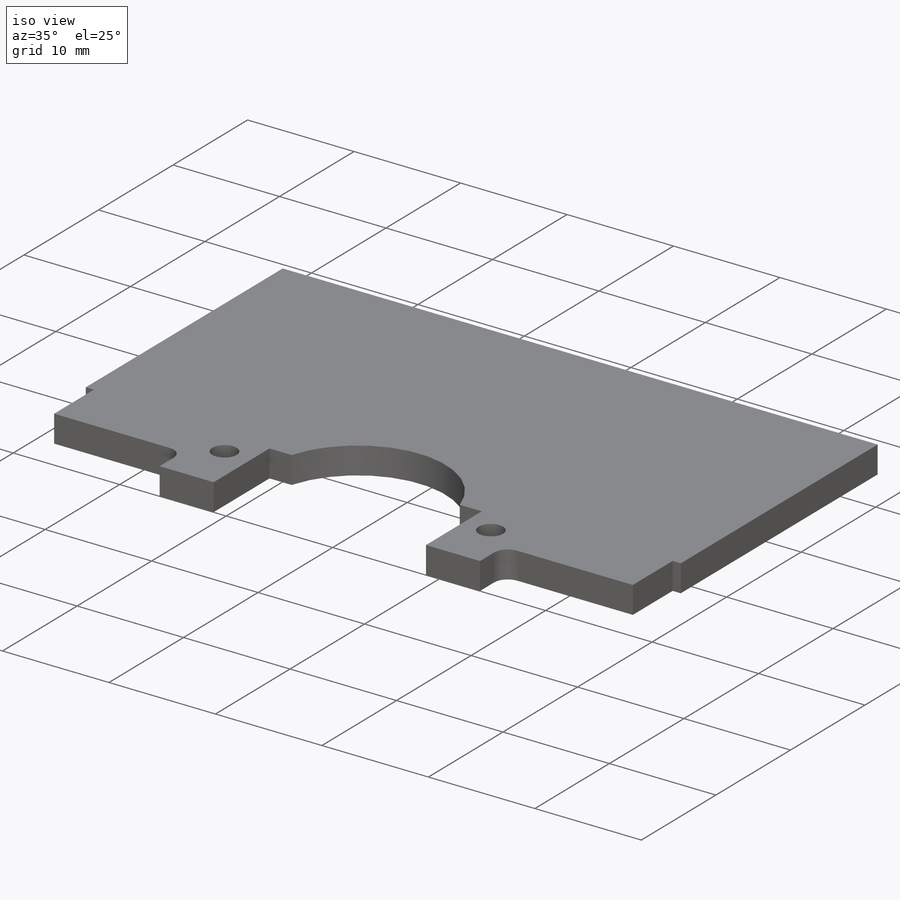
[diagram: iso view]
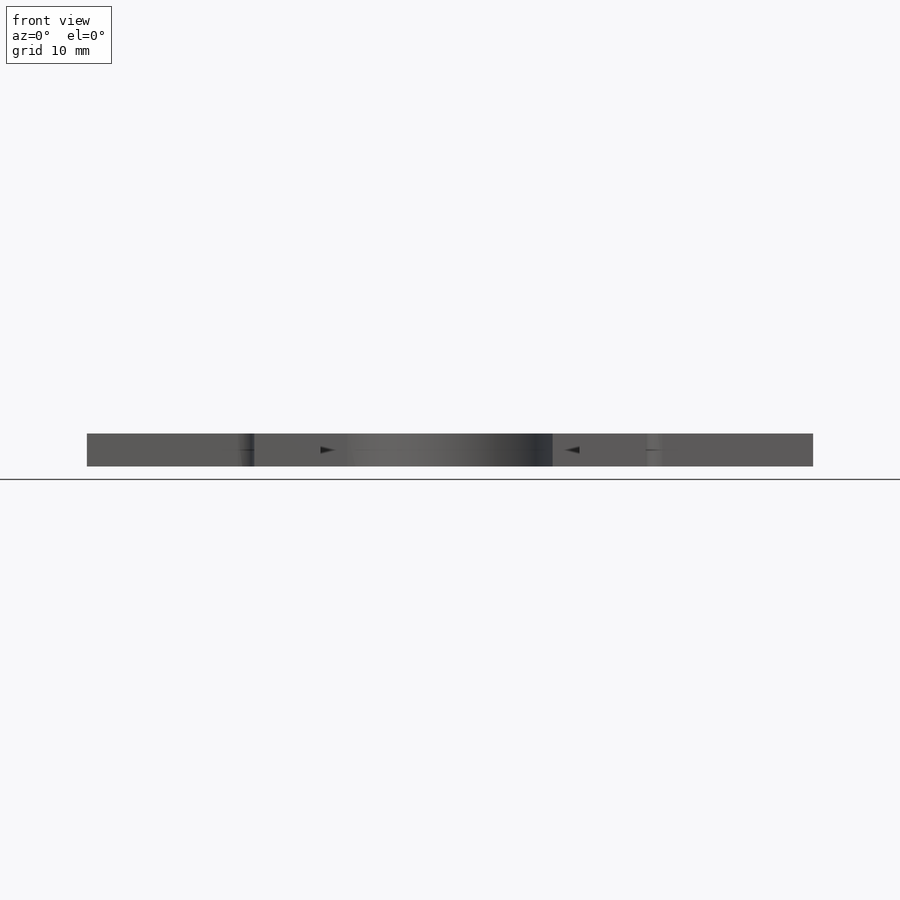
[diagram: front view]
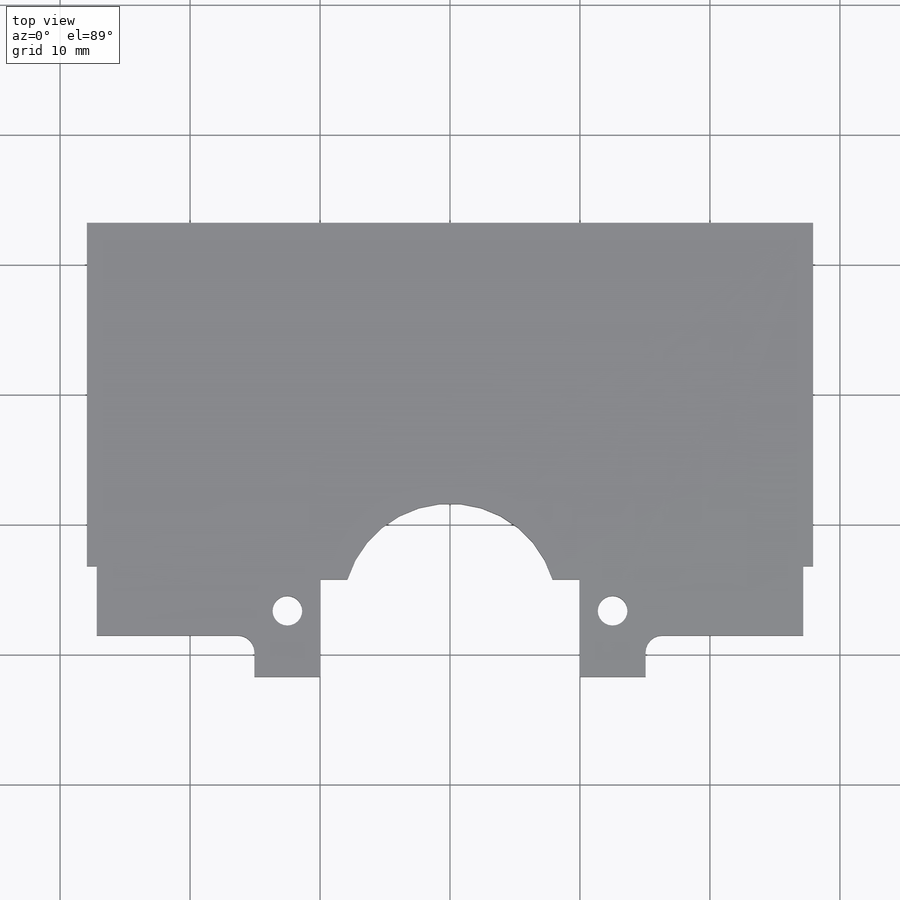
[diagram: top view]
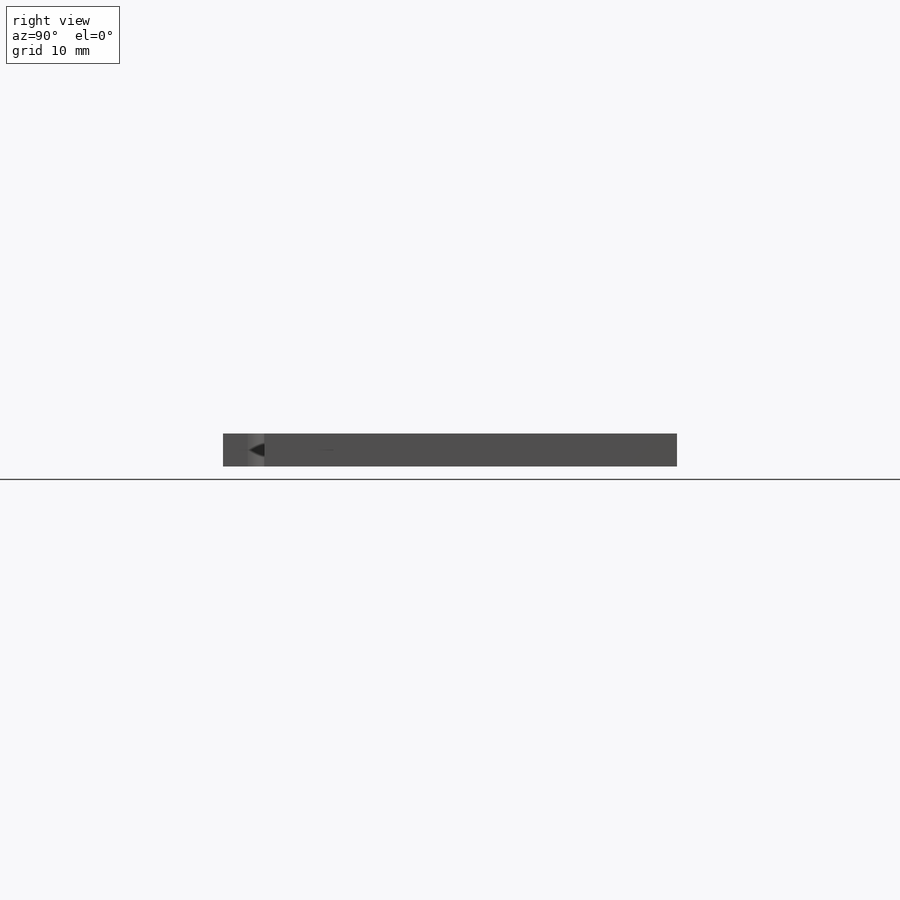
[diagram: right view]
SOLIDWORKS PART (.sldprt)
format: sldprt  version: not decoded by parser v0  size: 1,086,464 bytes
history: native  units: mm
features: sketch x3, material x1, extrude x1, fillet x1 (+13 scaffold rows collapsed)
feature tree (19):
  scaffold x13  (default folders/planes/origin — collapsed)
  material  "Material <not specified>"
  sketch  "Sketch1"  dims[D11=2.286mm D12=8.255mm D1=55.88mm D2=26.416mm D3=31.75mm D4=0.762mm D5=34.925mm D6=27.432mm D7=19.939mm D8=5.08mm D9=2.54mm D10=5.08mm]
  extrude  "body"  Depth=2.54mm
  fillet  "Fillet1"  Radius=1.27mm
  sketch  "base curves"  dims[c1.D1=34.925mm c1.D3=~33.981642mm c1.D6=~36.474553mm c1.D7=~38.389405mm c1.D8=~39.446321mm c2.D3=~16.44883mm c2.D5=~2.958587mm c3.D5=22.5deg c3.D6=~2.844037mm c4.D6=22.5deg c4.D7=2.794mm c5.D7=22.5deg c5.D8=~2.836212mm c6.D8=22.5deg c6.D9=1.8546mm c7.D9=~21.523702deg c8.D9=~2.083549mm c9.D9=7.5deg c9.D10=~1.850495mm c10.D10=~20.361384deg c11.D10=~2.946584mm c12.D10=15.0deg c13.D10=~1.850495mm c14.D10=7.5deg c14.D11=~2.620318mm c15.D11=7.5deg c15.D12=~1.729465mm c16.D12=7.5deg c16.D13=~2.851878mm c16.D14=90.0deg c17.D13=2.794mm c18.D13=7.5deg c18.D14=~1.780018mm c19.D14=7.5deg c19.D15=~2.620318mm c20.D15=7.5deg c20.D16=~1.58278mm c21.D16=7.5deg c21.D2=~38.569678mm c22.D2=45.0deg c22.D4=~34.141513mm c23.D4=90.0deg c23.D5=~35.290215mm c24.D5=2.5deg c24.D6=~16.44883mm c25.D5=~34.141513mm c26.D5=87.5deg c27.D5=~47.176891mm c28.D5=2.5deg c28.D9=~49.907901mm c28.D2=1.27mm c28.D4=2.794mm c28.D8=1.778mm c28.D17=0.0mm]
  sketch  "hours"  dims[c1.D5=~23.353661mm c1.D6=~2.201701mm c2.D6=87.5deg c2.D1=0.0mm c2.D2=0.0mm c2.D3=0.0mm]
decode coverage: 5 of 5 modeling features carry decoded parameters
note: ~ marks probable driven/reference dimensions
note: suppression state not decoded; provenance and decode notes live in map.json
